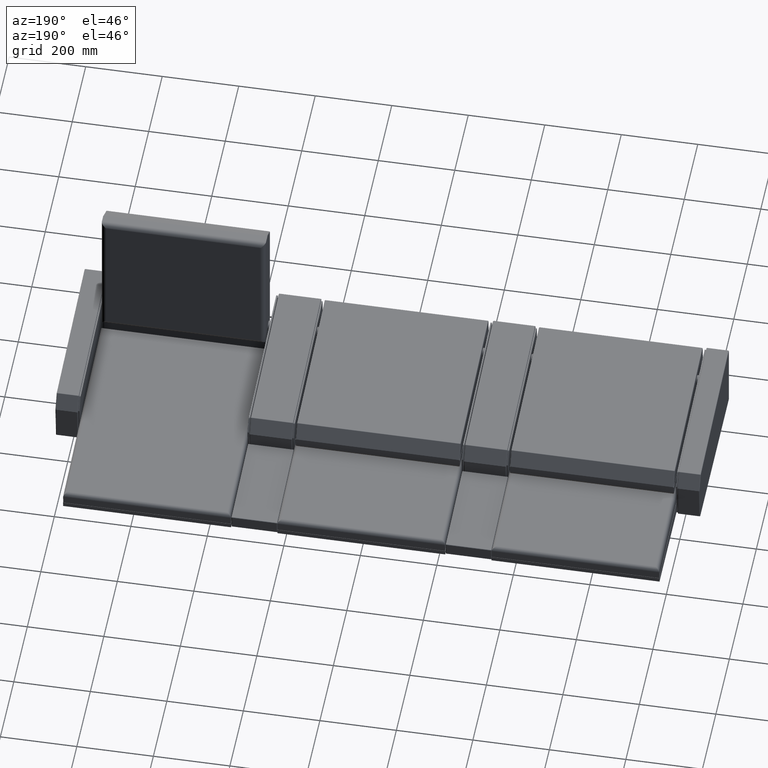
[diagram: clean part render]
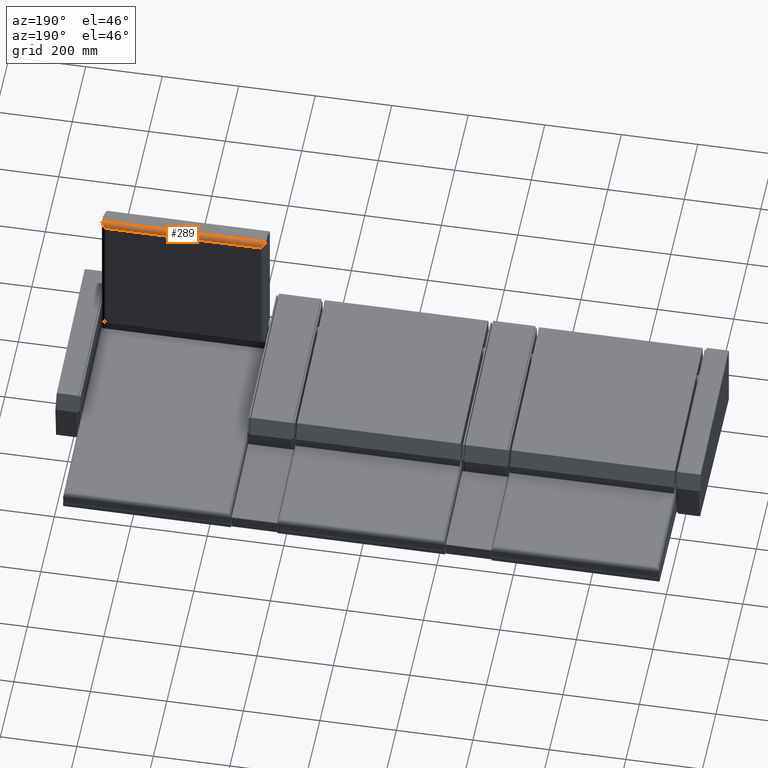
[diagram: same view with one face highlighted and labeled with its STEP entity id]
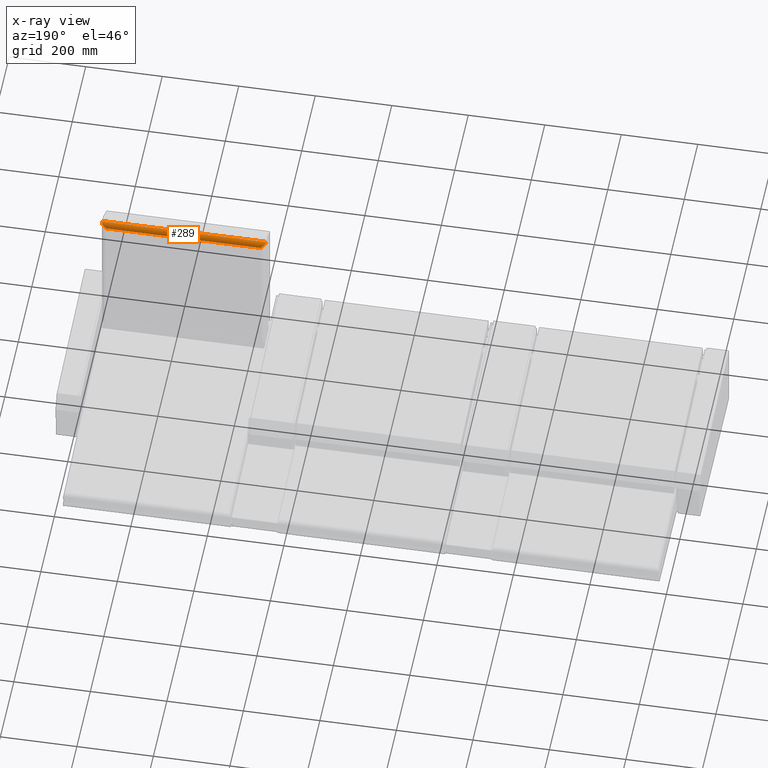
[diagram: x-ray of the same camera — body ghosted, the highlighted face saturated]
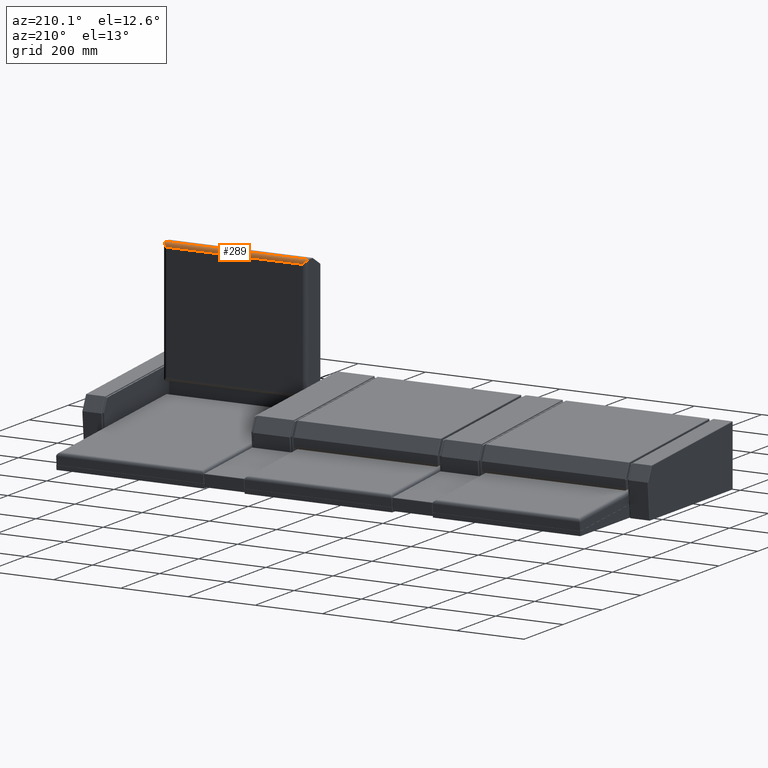
[diagram: same view with one face highlighted and labeled with its STEP entity id]
A machine part, auxiliary view. The second image highlights one B-rep face of the part: STEP entity #289.
The next image is the same camera in x-ray: the body ghosted, the highlighted face saturated — about 0% of this face is hidden behind the body in this view.
A second angle (auxiliary view) of the same face is appended — the face is thin or edge-on in the first view.
In plain terms, the highlighted cylindrical surface (edge-blend (fillet) strip) has radius 12 mm, axis along (-1, 0, 0).
Its self-contained STEP definition (entity closure, byte-faithful):
#42 = ORIENTED_EDGE ( 'NONE', *, *, #3210, .F. ) ;
#43 = ORIENTED_EDGE ( 'NONE', *, *, #3219, .F. ) ;
#44 = ORIENTED_EDGE ( 'NONE', *, *, #3199, .F. ) ;
#45 = ORIENTED_EDGE ( 'NONE', *, *, #3216, .T. ) ;
#289 = ADVANCED_FACE ( 'NONE', ( #7740 ), #7748, .T. ) ;
#1408 = CARTESIAN_POINT ( 'NONE',  ( -202.4999999999999700, 50.99999999999996400, 335.9999999999999400 ) ) ;
#1415 = CARTESIAN_POINT ( 'NONE',  ( 214.5000000000000000, 38.99999999999995700, 348.0000000000000000 ) ) ;
#1422 = CARTESIAN_POINT ( 'NONE',  ( -214.5000000000000000, 38.99999999999995700, 348.0000000000000000 ) ) ;
#1426 = CARTESIAN_POINT ( 'NONE',  ( 202.4999999999999700, 50.99999999999996400, 335.9999999999999400 ) ) ;
#1961 =( BOUNDED_CURVE ( )  B_SPLINE_CURVE ( 3, ( #2689, #2688, #2681, #2690 ),
 .UNSPECIFIED., .F., .T. ) 
 B_SPLINE_CURVE_WITH_KNOTS ( ( 4, 4 ),
 ( 1.570796326794896600, 3.141592653589793600 ),
 .UNSPECIFIED. ) 
 CURVE ( )  GEOMETRIC_REPRESENTATION_ITEM ( )  RATIONAL_B_SPLINE_CURVE ( ( 1.000000000000000000, 0.8047378541243649400, 0.8047378541243649400, 1.000000000000000000 ) ) 
 REPRESENTATION_ITEM ( '' )  );
#2005 =( BOUNDED_CURVE ( )  B_SPLINE_CURVE ( 3, ( #2679, #2676, #2667, #2680 ),
 .UNSPECIFIED., .F., .F. ) 
 B_SPLINE_CURVE_WITH_KNOTS ( ( 4, 4 ),
 ( 4.712388980384689700, 6.283185307179587100 ),
 .UNSPECIFIED. ) 
 CURVE ( )  GEOMETRIC_REPRESENTATION_ITEM ( )  RATIONAL_B_SPLINE_CURVE ( ( 1.000000000000000000, 0.8047378541243648300, 0.8047378541243648300, 1.000000000000000000 ) ) 
 REPRESENTATION_ITEM ( '' )  );
#2064 = AXIS2_PLACEMENT_3D ( 'NONE', #5349, #5350, #5358 ) ;
#2632 = CARTESIAN_POINT ( 'NONE',  ( 214.5000000000000000, 38.99999999999996400, 348.0000000000000000 ) ) ;
#2641 = DIRECTION ( 'NONE',  ( -1.000000000000000000, 0.0000000000000000000, 0.0000000000000000000 ) ) ;
#2657 = CARTESIAN_POINT ( 'NONE',  ( 214.5000000000000000, 50.99999999999996400, 335.9999999999999400 ) ) ;
#2658 = DIRECTION ( 'NONE',  ( 1.000000000000000000, -0.0000000000000000000, -0.0000000000000000000 ) ) ;
#2667 = CARTESIAN_POINT ( 'NONE',  ( -214.5000000000000000, 46.02943725152281500, 348.0000000000000600 ) ) ;
#2676 = CARTESIAN_POINT ( 'NONE',  ( -209.5294372515228400, 50.99999999999996400, 343.0294372515228400 ) ) ;
#2679 = CARTESIAN_POINT ( 'NONE',  ( -202.4999999999999700, 50.99999999999996400, 335.9999999999999400 ) ) ;
#2680 = CARTESIAN_POINT ( 'NONE',  ( -214.5000000000000000, 38.99999999999995700, 348.0000000000000000 ) ) ;
#2681 = CARTESIAN_POINT ( 'NONE',  ( 214.5000000000000000, 46.02943725152281500, 348.0000000000000000 ) ) ;
#2688 = CARTESIAN_POINT ( 'NONE',  ( 209.5294372515228400, 50.99999999999996400, 343.0294372515228400 ) ) ;
#2689 = CARTESIAN_POINT ( 'NONE',  ( 202.4999999999999700, 50.99999999999996400, 335.9999999999999400 ) ) ;
#2690 = CARTESIAN_POINT ( 'NONE',  ( 214.5000000000000000, 38.99999999999995700, 348.0000000000000000 ) ) ;
#3199 = EDGE_CURVE ( 'NONE', #6596, #6603, #4245, .T. ) ;
#3210 = EDGE_CURVE ( 'NONE', #6589, #6607, #4280, .T. ) ;
#3216 = EDGE_CURVE ( 'NONE', #6589, #6603, #2005, .T. ) ;
#3219 = EDGE_CURVE ( 'NONE', #6607, #6596, #1961, .T. ) ;
#4245 = LINE ( 'NONE', #2632, #4263 ) ;
#4263 = VECTOR ( 'NONE', #2641, 1000.000000000000000 ) ;
#4280 = LINE ( 'NONE', #2657, #4282 ) ;
#4282 = VECTOR ( 'NONE', #2658, 1000.000000000000000 ) ;
#5349 = CARTESIAN_POINT ( 'NONE',  ( 214.5000000000000000, 38.99999999999996400, 335.9999999999999400 ) ) ;
#5350 = DIRECTION ( 'NONE',  ( -1.000000000000000000, 0.0000000000000000000, 0.0000000000000000000 ) ) ;
#5358 = DIRECTION ( 'NONE',  ( 0.0000000000000000000, 0.0000000000000000000, 1.000000000000000000 ) ) ;
#6589 = VERTEX_POINT ( 'NONE', #1408 ) ;
#6596 = VERTEX_POINT ( 'NONE', #1415 ) ;
#6603 = VERTEX_POINT ( 'NONE', #1422 ) ;
#6607 = VERTEX_POINT ( 'NONE', #1426 ) ;
#6868 = EDGE_LOOP ( 'NONE', ( #45, #44, #43, #42 ) ) ;
#7740 = FACE_OUTER_BOUND ( 'NONE', #6868, .T. ) ;
#7748 = CYLINDRICAL_SURFACE ( 'NONE', #2064, 12.00000000000001100 ) ;